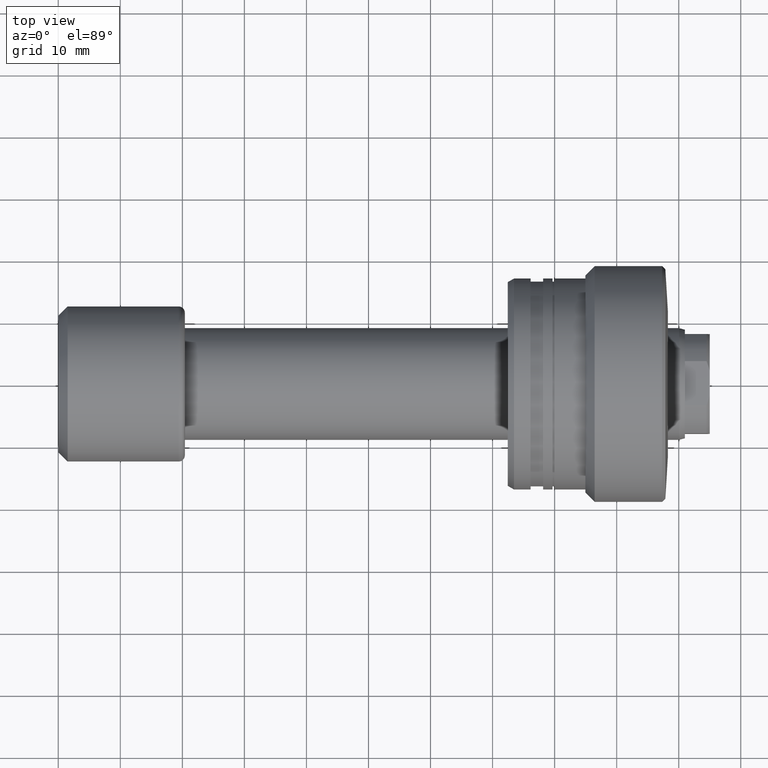
[diagram: clean part render]
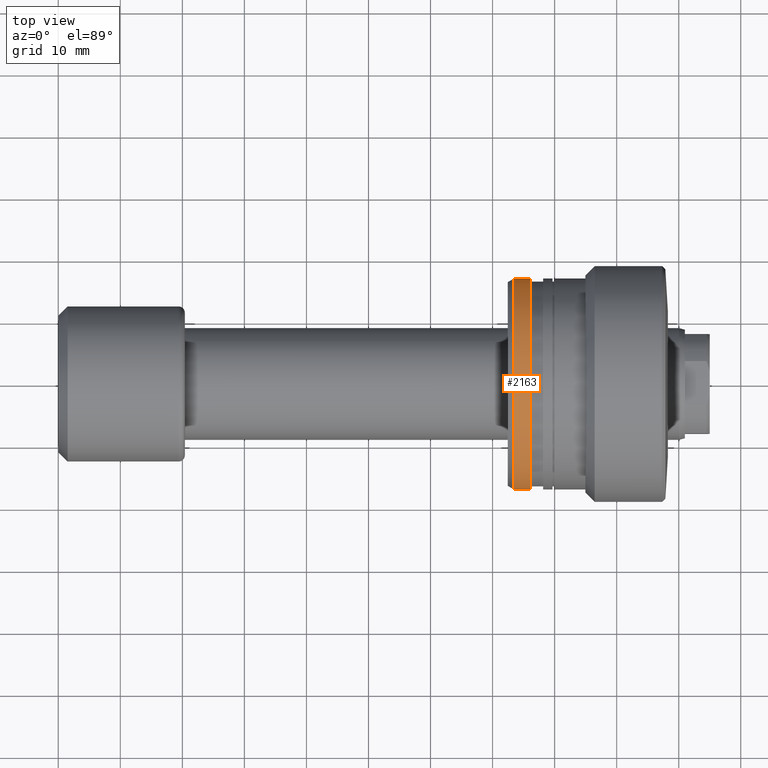
[diagram: same view with one face highlighted and labeled with its STEP entity id]
A machine part, top view. The second image highlights one B-rep face of the part: STEP entity #2163.
In plain terms, the highlighted cylindrical surface (partial cylindrical patch) has radius 17 mm, axis along (-1, 0, 0).
Its self-contained STEP definition (entity closure, byte-faithful):
#88 = VERTEX_POINT ( 'NONE', #1748 ) ;
#93 = ORIENTED_EDGE ( 'NONE', *, *, #137, .F. ) ;
#95 = DIRECTION ( 'NONE',  ( -1.000000000000000000, 9.810081908519753690E-16, -0.000000000000000000 ) ) ;
#109 = CARTESIAN_POINT ( 'NONE',  ( -30.28002276692730632, 16.99999999999999645, 2.081899558550499885E-15 ) ) ;
#137 = EDGE_CURVE ( 'NONE', #2062, #88, #1556, .T. ) ;
#143 = CARTESIAN_POINT ( 'NONE',  ( -22.80878161770237966, -17.00000000000000000, 0.000000000000000000 ) ) ;
#170 = CARTESIAN_POINT ( 'NONE',  ( -25.50000000000015987, -4.689241486814468610E-15, 0.000000000000000000 ) ) ;
#195 = ORIENTED_EDGE ( 'NONE', *, *, #244, .F. ) ;
#244 = EDGE_CURVE ( 'NONE', #1037, #2062, #2093, .T. ) ;
#273 = DIRECTION ( 'NONE',  ( -1.000000000000000000, 9.810081908519753690E-16, -0.000000000000000000 ) ) ;
#282 = LINE ( 'NONE', #109, #2258 ) ;
#403 = CARTESIAN_POINT ( 'NONE',  ( -30.28002276692734185, -16.99999999999999645, 0.000000000000000000 ) ) ;
#432 = AXIS2_PLACEMENT_3D ( 'NONE', #170, #273, #1196 ) ;
#478 = AXIS2_PLACEMENT_3D ( 'NONE', #1588, #1012, #2336 ) ;
#512 = EDGE_CURVE ( 'NONE', #1037, #1085, #1559, .T. ) ;
#516 = FACE_OUTER_BOUND ( 'NONE', #2406, .T. ) ;
#880 = CYLINDRICAL_SURFACE ( 'NONE', #1586, 16.99999999999999645 ) ;
#1012 = DIRECTION ( 'NONE',  ( -1.000000000000000000, 9.810081908519753690E-16, -0.000000000000000000 ) ) ;
#1037 = VERTEX_POINT ( 'NONE', #143 ) ;
#1085 = VERTEX_POINT ( 'NONE', #2418 ) ;
#1156 = VECTOR ( 'NONE', #1840, 1000.000000000000000 ) ;
#1196 = DIRECTION ( 'NONE',  ( -1.020425574104004196E-15, -1.000000000000000000, 0.000000000000000000 ) ) ;
#1267 = CARTESIAN_POINT ( 'NONE',  ( -30.28002276692732408, 0.000000000000000000, 0.000000000000000000 ) ) ;
#1556 = CIRCLE ( 'NONE', #432, 17.00000000000000000 ) ;
#1559 = CIRCLE ( 'NONE', #478, 16.99999999999999289 ) ;
#1586 = AXIS2_PLACEMENT_3D ( 'NONE', #1267, #1628, #1643 ) ;
#1588 = CARTESIAN_POINT ( 'NONE',  ( -22.80878161770236190, -7.329348763220012769E-15, 0.000000000000000000 ) ) ;
#1628 = DIRECTION ( 'NONE',  ( -1.000000000000000000, 9.810081908519753690E-16, -0.000000000000000000 ) ) ;
#1643 = DIRECTION ( 'NONE',  ( -1.020425574104004394E-15, -1.000000000000000000, 0.000000000000000000 ) ) ;
#1748 = CARTESIAN_POINT ( 'NONE',  ( -25.50000000000014566, 16.99999999999999289, 0.000000000000000000 ) ) ;
#1840 = DIRECTION ( 'NONE',  ( -1.000000000000000000, 9.810081908519753690E-16, -0.000000000000000000 ) ) ;
#2015 = EDGE_CURVE ( 'NONE', #1085, #88, #282, .T. ) ;
#2062 = VERTEX_POINT ( 'NONE', #2142 ) ;
#2093 = LINE ( 'NONE', #403, #1156 ) ;
#2142 = CARTESIAN_POINT ( 'NONE',  ( -25.50000000000017764, -17.00000000000000355, 2.081899558550500674E-15 ) ) ;
#2163 = ADVANCED_FACE ( 'NONE', ( #516 ), #880, .T. ) ;
#2258 = VECTOR ( 'NONE', #95, 1000.000000000000000 ) ;
#2336 = DIRECTION ( 'NONE',  ( -1.020425574104004591E-15, -1.000000000000000000, 0.000000000000000000 ) ) ;
#2348 = ORIENTED_EDGE ( 'NONE', *, *, #2015, .T. ) ;
#2368 = ORIENTED_EDGE ( 'NONE', *, *, #512, .T. ) ;
#2406 = EDGE_LOOP ( 'NONE', ( #2368, #2348, #93, #195 ) ) ;
#2418 = CARTESIAN_POINT ( 'NONE',  ( -22.80878161770234414, 16.99999999999998579, 2.081899558550499885E-15 ) ) ;